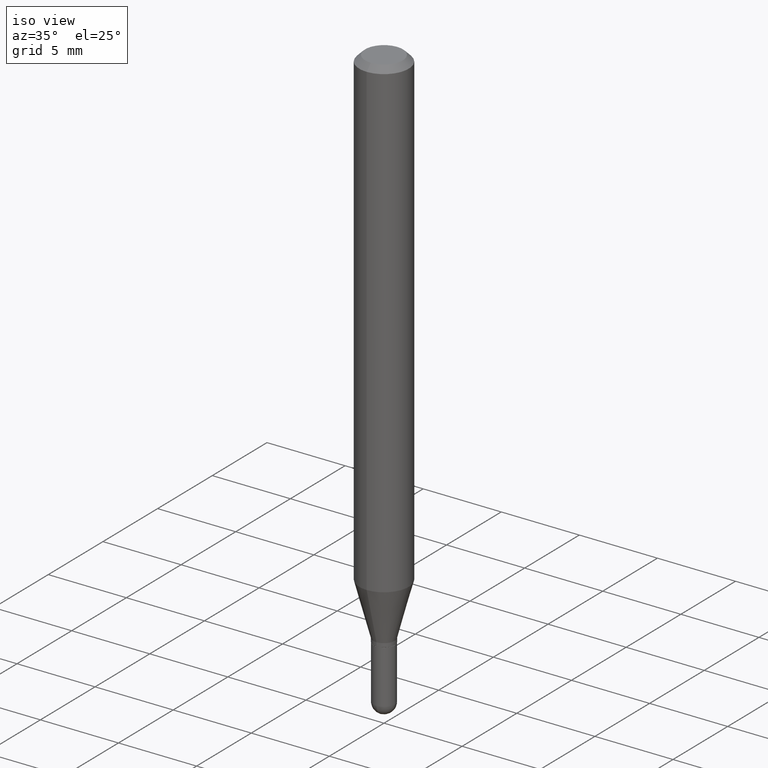
[diagram: clean part render]
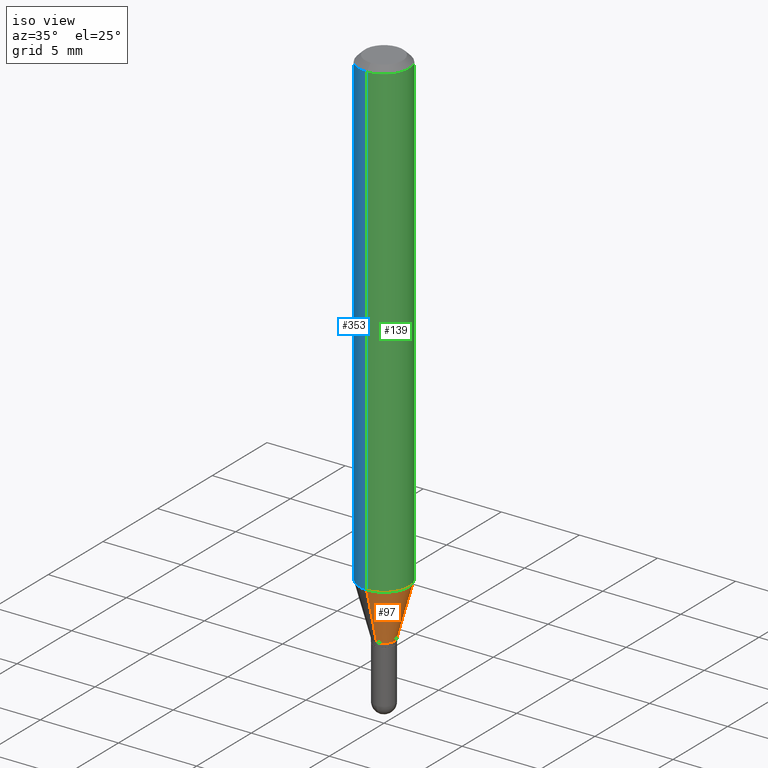
[diagram: same view with three faces highlighted in distinct colors, each labeled with its STEP entity id]
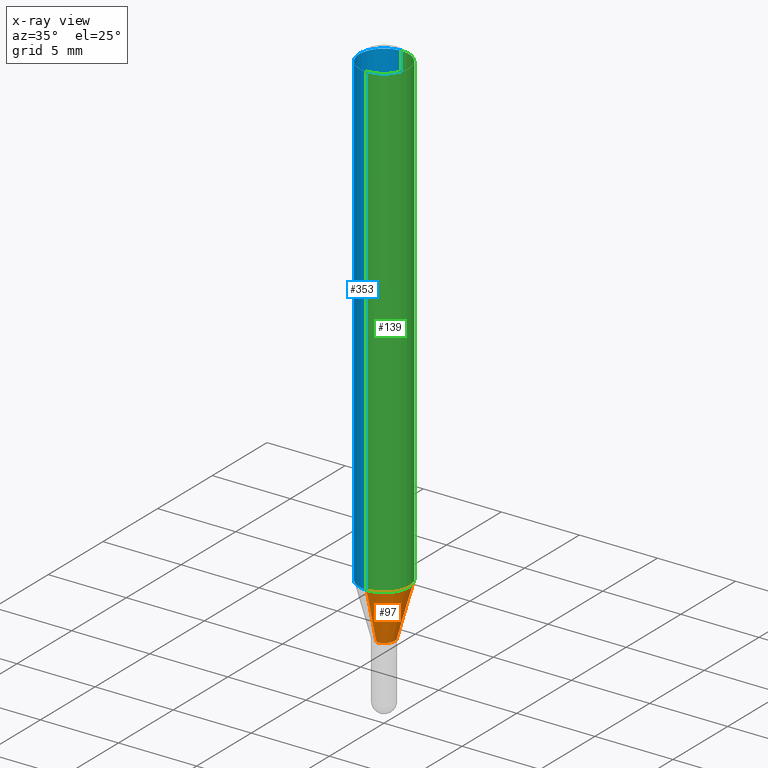
[diagram: x-ray of the same camera — body ghosted, the three highlighted faces saturated]
A machine part, iso view with three faces highlighted in distinct colors.
The next image is the same camera in x-ray (body ghosted, the three faces saturated) — at least one of them is partly hidden behind the body in this view.
Their STEP definitions:

[orange] entity #97 — the highlighted conical surface has half-angle 15 deg.
#26 = CARTESIAN_POINT ( 'NONE',  ( 3.247570748305587129E-29, -4.636704153930258690E-15, -1.328000000000000069 ) ) ;
#31 = EDGE_CURVE ( 'NONE', #185, #495, #222, .T. ) ;
#33 = CARTESIAN_POINT ( 'NONE',  ( -1.885399922974961558E-16, -0.02700000000000455855, -1.328000000000000069 ) ) ;
#40 = VERTEX_POINT ( 'NONE', #33 ) ;
#45 = VERTEX_POINT ( 'NONE', #208 ) ;
#49 = DIRECTION ( 'NONE',  ( -6.982962677686265922E-15, -1.000000000000000000, 0.000000000000000000 ) ) ;
#54 = EDGE_CURVE ( 'NONE', #40, #185, #260, .T. ) ;
#89 = LINE ( 'NONE', #446, #164 ) ;
#97 = ADVANCED_FACE ( 'NONE', ( #412 ), #416, .T. ) ;
#107 = CARTESIAN_POINT ( 'NONE',  ( 1.918465386552589476E-16, 0.02699999999999528819, -1.328000000000000069 ) ) ;
#120 = AXIS2_PLACEMENT_3D ( 'NONE', #321, #237, #49 ) ;
#129 = DIRECTION ( 'NONE',  ( -2.445459900832520260E-29, 3.491494091814953500E-15, 1.000000000000000000 ) ) ;
#137 = ORIENTED_EDGE ( 'NONE', *, *, #146, .F. ) ;
#146 = EDGE_CURVE ( 'NONE', #40, #45, #89, .T. ) ;
#164 = VECTOR ( 'NONE', #400, 39.37007874015748854 ) ;
#168 = VECTOR ( 'NONE', #264, 39.37007874015748854 ) ;
#180 = AXIS2_PLACEMENT_3D ( 'NONE', #333, #129, #366 ) ;
#183 = DIRECTION ( 'NONE',  ( -2.445459900832520260E-29, 3.491494091814953500E-15, 1.000000000000000000 ) ) ;
#185 = VERTEX_POINT ( 'NONE', #452 ) ;
#199 = EDGE_CURVE ( 'NONE', #45, #495, #354, .T. ) ;
#208 = CARTESIAN_POINT ( 'NONE',  ( -4.364351673553625802E-16, -0.06250000000000419109, -1.195512196331305121 ) ) ;
#211 = ORIENTED_EDGE ( 'NONE', *, *, #54, .T. ) ;
#216 = EDGE_LOOP ( 'NONE', ( #211, #235, #414, #137 ) ) ;
#222 = LINE ( 'NONE', #107, #168 ) ;
#235 = ORIENTED_EDGE ( 'NONE', *, *, #31, .T. ) ;
#237 = DIRECTION ( 'NONE',  ( -2.445459900832520260E-29, 3.491494091814953500E-15, 1.000000000000000000 ) ) ;
#260 = CIRCLE ( 'NONE', #120, 0.02699999999999992337 ) ;
#264 = DIRECTION ( 'NONE',  ( 1.839019923739603471E-15, 0.2588190451025254024, 0.9659258262890669799 ) ) ;
#285 = AXIS2_PLACEMENT_3D ( 'NONE', #26, #183, #501 ) ;
#310 = CARTESIAN_POINT ( 'NONE',  ( 4.440892098500915082E-16, 0.06249999999999580197, -1.195512196331305788 ) ) ;
#321 = CARTESIAN_POINT ( 'NONE',  ( 3.247570748305587129E-29, -4.636704153930258690E-15, -1.328000000000000069 ) ) ;
#333 = CARTESIAN_POINT ( 'NONE',  ( 2.923577137084422367E-29, -4.174123770183471873E-15, -1.195512196331305343 ) ) ;
#354 = CIRCLE ( 'NONE', #180, 0.06250000000000000000 ) ;
#366 = DIRECTION ( 'NONE',  ( -6.982962677686265922E-15, -1.000000000000000000, 4.370956789862821150E-15 ) ) ;
#400 = DIRECTION ( 'NONE',  ( -1.807323732225333295E-15, -0.2588190451025186301, 0.9659258262890687563 ) ) ;
#412 = FACE_OUTER_BOUND ( 'NONE', #216, .T. ) ;
#414 = ORIENTED_EDGE ( 'NONE', *, *, #199, .F. ) ;
#416 = CONICAL_SURFACE ( 'NONE', #285, 0.02699999999999992337, 0.2617993877991507956 ) ;
#446 = CARTESIAN_POINT ( 'NONE',  ( -1.885399922974961558E-16, -0.02700000000000455855, -1.328000000000000069 ) ) ;
#452 = CARTESIAN_POINT ( 'NONE',  ( 3.179678742526754374E-16, 0.02699999999999528819, -1.328000000000000069 ) ) ;
#495 = VERTEX_POINT ( 'NONE', #310 ) ;
#501 = DIRECTION ( 'NONE',  ( -6.982962677686265922E-15, -1.000000000000000000, 0.000000000000000000 ) ) ;

[blue] entity #353 — the highlighted cylindrical surface (edge-blend (fillet) strip) has radius 1.5875 mm, axis along (-0, 0, 1).
#17 = CIRCLE ( 'NONE', #281, 0.06250000000000000000 ) ;
#45 = VERTEX_POINT ( 'NONE', #208 ) ;
#102 = CARTESIAN_POINT ( 'NONE',  ( 4.440892098500625669E-16, 0.06250000000000000000, -2.182183807384345937E-16 ) ) ;
#110 = DIRECTION ( 'NONE',  ( -2.445459900832520260E-29, 3.491494091814953500E-15, 1.000000000000000000 ) ) ;
#111 = CARTESIAN_POINT ( 'NONE',  ( 0.000000000000000000, 0.000000000000000000, 0.000000000000000000 ) ) ;
#117 = DIRECTION ( 'NONE',  ( -2.445459900832520260E-29, 3.491494091814953500E-15, 1.000000000000000000 ) ) ;
#155 = ORIENTED_EDGE ( 'NONE', *, *, #257, .F. ) ;
#167 = EDGE_CURVE ( 'NONE', #45, #474, #361, .T. ) ;
#181 = EDGE_LOOP ( 'NONE', ( #155, #198, #336, #387 ) ) ;
#193 = DIRECTION ( 'NONE',  ( -2.445459900832520260E-29, 3.491494091814953500E-15, 1.000000000000000000 ) ) ;
#198 = ORIENTED_EDGE ( 'NONE', *, *, #322, .T. ) ;
#208 = CARTESIAN_POINT ( 'NONE',  ( -4.364351673553625802E-16, -0.06250000000000419109, -1.195512196331305121 ) ) ;
#217 = CARTESIAN_POINT ( 'NONE',  ( 2.923577137084422367E-29, -4.174123770183471873E-15, -1.195512196331305343 ) ) ;
#233 = VECTOR ( 'NONE', #110, 39.37007874015748143 ) ;
#236 = FACE_OUTER_BOUND ( 'NONE', #181, .T. ) ;
#257 = EDGE_CURVE ( 'NONE', #495, #461, #455, .T. ) ;
#274 = DIRECTION ( 'NONE',  ( -2.445459900832520260E-29, 3.491494091814953500E-15, 1.000000000000000000 ) ) ;
#281 = AXIS2_PLACEMENT_3D ( 'NONE', #217, #193, #432 ) ;
#290 = VECTOR ( 'NONE', #489, 39.37007874015748143 ) ;
#300 = DIRECTION ( 'NONE',  ( -6.982962677686265922E-15, -1.000000000000000000, 3.483106191921935554E-15 ) ) ;
#310 = CARTESIAN_POINT ( 'NONE',  ( 4.440892098500915082E-16, 0.06249999999999580197, -1.195512196331305788 ) ) ;
#322 = EDGE_CURVE ( 'NONE', #495, #45, #17, .T. ) ;
#336 = ORIENTED_EDGE ( 'NONE', *, *, #167, .T. ) ;
#353 = ADVANCED_FACE ( 'NONE', ( #236 ), #481, .T. ) ;
#355 = CARTESIAN_POINT ( 'NONE',  ( -4.364351673553916201E-16, -0.06250000000000000000, 2.182183807384345937E-16 ) ) ;
#361 = LINE ( 'NONE', #355, #290 ) ;
#387 = ORIENTED_EDGE ( 'NONE', *, *, #472, .F. ) ;
#389 = CARTESIAN_POINT ( 'NONE',  ( -4.364351673553912750E-16, -0.06250000000000005551, -0.01499999999999979128 ) ) ;
#432 = DIRECTION ( 'NONE',  ( -6.982962677686265922E-15, -1.000000000000000000, 4.370956789862821150E-15 ) ) ;
#445 = DIRECTION ( 'NONE',  ( -6.982962677686265922E-15, -1.000000000000000000, 3.491494091814953500E-15 ) ) ;
#449 = AXIS2_PLACEMENT_3D ( 'NONE', #512, #274, #300 ) ;
#455 = LINE ( 'NONE', #102, #233 ) ;
#461 = VERTEX_POINT ( 'NONE', #467 ) ;
#467 = CARTESIAN_POINT ( 'NONE',  ( 4.440892098500920012E-16, 0.06249999999999995143, -0.01500000000000022669 ) ) ;
#470 = CIRCLE ( 'NONE', #449, 0.06250000000000000000 ) ;
#472 = EDGE_CURVE ( 'NONE', #461, #474, #470, .T. ) ;
#474 = VERTEX_POINT ( 'NONE', #389 ) ;
#480 = AXIS2_PLACEMENT_3D ( 'NONE', #111, #117, #445 ) ;
#481 = CYLINDRICAL_SURFACE ( 'NONE', #480, 0.06250000000000000000 ) ;
#489 = DIRECTION ( 'NONE',  ( -2.445459900832520260E-29, 3.491494091814953500E-15, 1.000000000000000000 ) ) ;
#495 = VERTEX_POINT ( 'NONE', #310 ) ;
#512 = CARTESIAN_POINT ( 'NONE',  ( 3.668189851248782579E-31, -5.237241137722432962E-17, -0.01500000000000000812 ) ) ;

[green] entity #139 — the highlighted cylindrical surface (edge-blend (fillet) strip) has radius 1.5875 mm, axis along (-0, 0, 1).
#37 = ORIENTED_EDGE ( 'NONE', *, *, #199, .T. ) ;
#41 = DIRECTION ( 'NONE',  ( -6.982962677686265922E-15, -1.000000000000000000, 3.483106191921935554E-15 ) ) ;
#45 = VERTEX_POINT ( 'NONE', #208 ) ;
#52 = CYLINDRICAL_SURFACE ( 'NONE', #95, 0.06250000000000000000 ) ;
#79 = CARTESIAN_POINT ( 'NONE',  ( 3.668189851248782579E-31, -5.237241137722432962E-17, -0.01500000000000000812 ) ) ;
#87 = EDGE_LOOP ( 'NONE', ( #37, #454, #377, #351 ) ) ;
#95 = AXIS2_PLACEMENT_3D ( 'NONE', #247, #440, #286 ) ;
#102 = CARTESIAN_POINT ( 'NONE',  ( 4.440892098500625669E-16, 0.06250000000000000000, -2.182183807384345937E-16 ) ) ;
#110 = DIRECTION ( 'NONE',  ( -2.445459900832520260E-29, 3.491494091814953500E-15, 1.000000000000000000 ) ) ;
#129 = DIRECTION ( 'NONE',  ( -2.445459900832520260E-29, 3.491494091814953500E-15, 1.000000000000000000 ) ) ;
#139 = ADVANCED_FACE ( 'NONE', ( #243 ), #52, .T. ) ;
#167 = EDGE_CURVE ( 'NONE', #45, #474, #361, .T. ) ;
#180 = AXIS2_PLACEMENT_3D ( 'NONE', #333, #129, #366 ) ;
#199 = EDGE_CURVE ( 'NONE', #45, #495, #354, .T. ) ;
#204 = CIRCLE ( 'NONE', #469, 0.06250000000000000000 ) ;
#208 = CARTESIAN_POINT ( 'NONE',  ( -4.364351673553625802E-16, -0.06250000000000419109, -1.195512196331305121 ) ) ;
#233 = VECTOR ( 'NONE', #110, 39.37007874015748143 ) ;
#234 = EDGE_CURVE ( 'NONE', #474, #461, #204, .T. ) ;
#243 = FACE_OUTER_BOUND ( 'NONE', #87, .T. ) ;
#247 = CARTESIAN_POINT ( 'NONE',  ( 0.000000000000000000, 0.000000000000000000, 0.000000000000000000 ) ) ;
#257 = EDGE_CURVE ( 'NONE', #495, #461, #455, .T. ) ;
#286 = DIRECTION ( 'NONE',  ( -6.982962677686265922E-15, -1.000000000000000000, 3.491494091814953500E-15 ) ) ;
#290 = VECTOR ( 'NONE', #489, 39.37007874015748143 ) ;
#310 = CARTESIAN_POINT ( 'NONE',  ( 4.440892098500915082E-16, 0.06249999999999580197, -1.195512196331305788 ) ) ;
#333 = CARTESIAN_POINT ( 'NONE',  ( 2.923577137084422367E-29, -4.174123770183471873E-15, -1.195512196331305343 ) ) ;
#351 = ORIENTED_EDGE ( 'NONE', *, *, #167, .F. ) ;
#354 = CIRCLE ( 'NONE', #180, 0.06250000000000000000 ) ;
#355 = CARTESIAN_POINT ( 'NONE',  ( -4.364351673553916201E-16, -0.06250000000000000000, 2.182183807384345937E-16 ) ) ;
#361 = LINE ( 'NONE', #355, #290 ) ;
#366 = DIRECTION ( 'NONE',  ( -6.982962677686265922E-15, -1.000000000000000000, 4.370956789862821150E-15 ) ) ;
#377 = ORIENTED_EDGE ( 'NONE', *, *, #234, .F. ) ;
#386 = DIRECTION ( 'NONE',  ( -2.445459900832520260E-29, 3.491494091814953500E-15, 1.000000000000000000 ) ) ;
#389 = CARTESIAN_POINT ( 'NONE',  ( -4.364351673553912750E-16, -0.06250000000000005551, -0.01499999999999979128 ) ) ;
#440 = DIRECTION ( 'NONE',  ( -2.445459900832520260E-29, 3.491494091814953500E-15, 1.000000000000000000 ) ) ;
#454 = ORIENTED_EDGE ( 'NONE', *, *, #257, .T. ) ;
#455 = LINE ( 'NONE', #102, #233 ) ;
#461 = VERTEX_POINT ( 'NONE', #467 ) ;
#467 = CARTESIAN_POINT ( 'NONE',  ( 4.440892098500920012E-16, 0.06249999999999995143, -0.01500000000000022669 ) ) ;
#469 = AXIS2_PLACEMENT_3D ( 'NONE', #79, #386, #41 ) ;
#474 = VERTEX_POINT ( 'NONE', #389 ) ;
#489 = DIRECTION ( 'NONE',  ( -2.445459900832520260E-29, 3.491494091814953500E-15, 1.000000000000000000 ) ) ;
#495 = VERTEX_POINT ( 'NONE', #310 ) ;